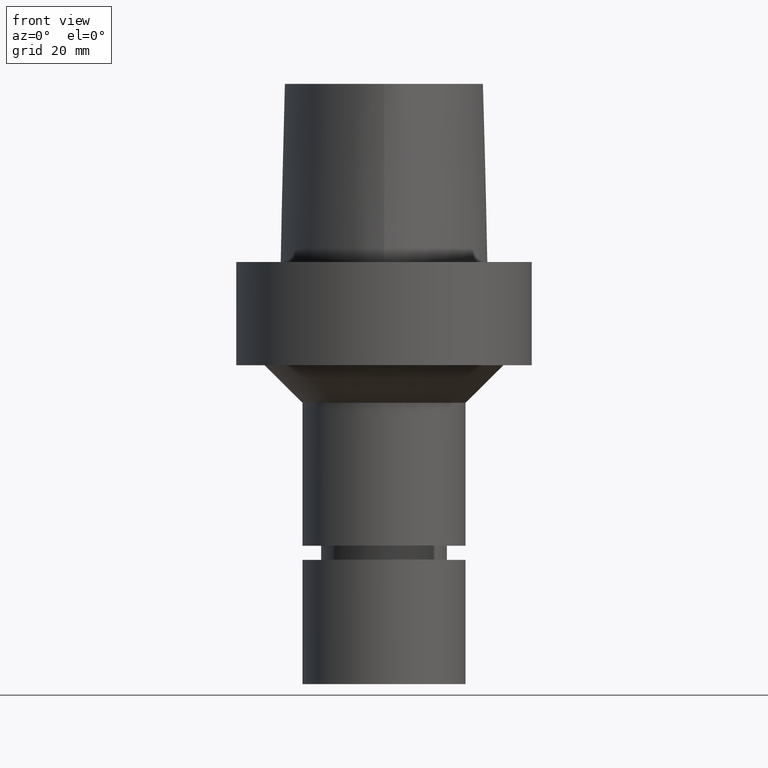
[diagram: clean part render]
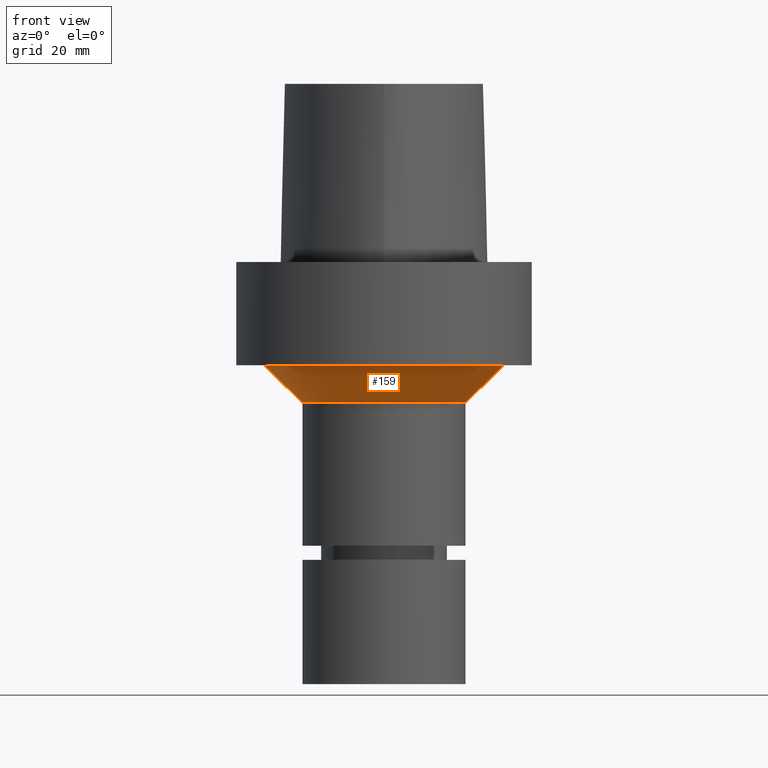
[diagram: same view with one face highlighted and labeled with its STEP entity id]
A machine part, front view. The second image highlights one B-rep face of the part: STEP entity #159.
In plain terms, the highlighted conical surface has half-angle 45 deg.
Its self-contained STEP definition (entity closure, byte-faithful):
#111=EDGE_CURVE('Unnamed[1]',#253,#253,#254,.T.);
#118=EDGE_CURVE('Unnamed[1]',#262,#262,#263,.T.);
#159=ADVANCED_FACE('Unnamed[1]',(#316,#317),#318,.T.);
#253=VERTEX_POINT('',#529);
#254=CIRCLE('',#530,17.4999999999998);
#262=VERTEX_POINT('',#556);
#263=CIRCLE('',#557,25.4999999999996);
#316=FACE_BOUND('',#644,.T.);
#317=FACE_BOUND('',#645,.T.);
#318=CONICAL_SURFACE('',#646,21.4999999999997,0.785398163397438);
#529=CARTESIAN_POINT('',(1.83697019872103E-015,17.4999999999998,-30.0000000000001));
#530=AXIS2_PLACEMENT_3D('',#798,#799,#800);
#556=CARTESIAN_POINT('',(1.3471114790621E-015,25.4999999999996,-22.0000000000001));
#557=AXIS2_PLACEMENT_3D('',#806,#807,#808);
#644=EDGE_LOOP('',(#860));
#645=EDGE_LOOP('',(#861));
#646=AXIS2_PLACEMENT_3D('',#862,#863,#864);
#798=CARTESIAN_POINT('',(1.83697019872103E-015,3.67394039744207E-015,-30.0000000000001));
#799=DIRECTION('',(6.12323399573677E-017,1.22464679914735E-016,-1.0));
#800=DIRECTION('',(-1.23259516440783E-032,1.0,1.22464679914735E-016));
#806=CARTESIAN_POINT('',(1.3471114790621E-015,2.69422295812419E-015,-22.0000000000001));
#807=DIRECTION('',(6.12323399573677E-017,1.22464679914735E-016,-1.0));
#808=DIRECTION('',(-1.23259516440783E-032,1.0,1.22464679914735E-016));
#860=ORIENTED_EDGE('',*,*,#111,.F.);
#861=ORIENTED_EDGE('',*,*,#118,.T.);
#862=CARTESIAN_POINT('',(1.59204083889157E-015,3.18408167778313E-015,-26.0000000000001));
#863=DIRECTION('',(-6.12323399573677E-017,-1.22464679914735E-016,1.0));
#864=DIRECTION('',(-1.23259516440783E-032,1.0,1.22464679914735E-016));